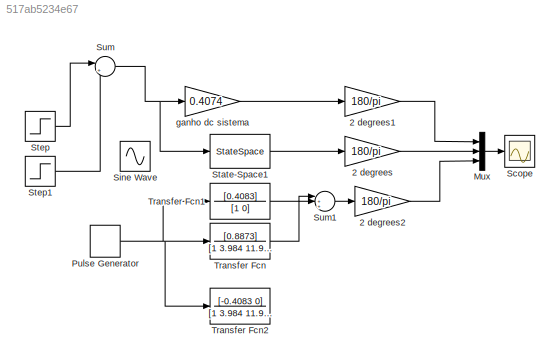
MODEL slx_517ab5234e67
KIND model
CONFIG AbsTol = 1e-3
CONFIG EnableMultiTasking = off
CONFIG FixedStep = auto
CONFIG MaxStep = 1e-3
CONFIG MinStep = auto
CONFIG RelTol = 1e-6
CONFIG SampleTimeConstraint = Unconstrained
CONFIG Solver = VariableStepAuto
CONFIG SolverName = VariableStepAuto
CONFIG StartTime = 0.0
CONFIG StopTime = 20
BLOCK [Gain] 2 degrees
  Gain = 180/pi
  OutDataTypeStr = Inherit: Inherit via internal rule
  ParamDataTypeStr = Inherit: Inherit via internal rule
  SaturateOnIntegerOverflow = off
BLOCK [Gain] 2 degrees1
  Gain = 180/pi
  OutDataTypeStr = Inherit: Inherit via internal rule
  ParamDataTypeStr = Inherit: Inherit via internal rule
  SaturateOnIntegerOverflow = off
BLOCK [Gain] 2 degrees2
  Gain = 180/pi
  OutDataTypeStr = Inherit: Inherit via internal rule
  ParamDataTypeStr = Inherit: Inherit via internal rule
  SaturateOnIntegerOverflow = off
BLOCK [Mux] Mux
  DisplayOption = bar
  Inputs = 3
  Ports = [3, 1]
BLOCK [DiscretePulseGenerator] Pulse Generator
  Amplitude = 100
  Period = 100
  PhaseDelay = 10
  Ports = [0, 1]
  PulseType = Time based
  PulseWidth = 2*10/10000
BLOCK [Scope] Scope
  NumInputPorts = 1
  Ports = [1]
  ScopeSpecificationString = Simulink.scopes.TimeScopeBlockCfg('CurrentConfiguration', extmgr.ConfigurationSet(extmgr.Configuration('Core','General UI',true),extmgr.Configuration('Core','Source UI',true),extmgr.Configuration('Sources','WiredSimulink',true),extmgr.Configuration('Visuals','Time Domain',true,'SerializedDisplays',{struct('MinYLimReal','-3.44297','MaxYLimReal','8.11891','YLabelReal','','MinYLimMag','0.00000','MaxY...<+1430ch>
BLOCK [Sin] Sine Wave
  Frequency = 1.9357
  Ports = [0, 1]
  SampleTime = 0
BLOCK [StateSpace] State-Space1
  A = ssPitch.a
  B = ssPitch.b
  C = ssPitch.c
  D = ssPitch.d
  InitialCondition = 0
  Ports = [1, 1]
BLOCK [Step] Step
  After = 0.2
  SampleTime = 0
  Time = 10
BLOCK [Step] Step1
  After = -0.2
  SampleTime = 0
  Time = 13.5
BLOCK [Sum] Sum
  IconShape = round
  InputSameDT = off
  Inputs = |++
  OutDataTypeStr = Inherit: Inherit via internal rule
  Ports = [2, 1]
  SaturateOnIntegerOverflow = off
BLOCK [Sum] Sum1
  IconShape = round
  InputSameDT = off
  Inputs = |+++
  OutDataTypeStr = Inherit: Inherit via internal rule
  Ports = [3, 1]
  SaturateOnIntegerOverflow = off
BLOCK [TransferFcn] Transfer Fcn
  Denominator = [1 3.984 11.9184]
  Numerator = [0.8873]
BLOCK [TransferFcn] Transfer Fcn1
  Denominator = [1 0]
  Numerator = [0.4083]
BLOCK [TransferFcn] Transfer Fcn2
  Denominator = [1 3.984 11.9184]
  Numerator = [-0.4083 0]
BLOCK [Gain] ganho dc sistema 
  Gain = 0.4074
  OutDataTypeStr = Inherit: Inherit via internal rule
  ParamDataTypeStr = Inherit: Inherit via internal rule
  SaturateOnIntegerOverflow = off
LINE 2 degrees1:1 -> Mux:1
LINE 2 degrees2:1 -> Mux:3
LINE 2 degrees:1 -> Mux:2
LINE Mux:1 -> Scope:1
NET Pulse Generator:1 -> Transfer Fcn1:1, Transfer Fcn2:1, Transfer Fcn:1
LINE State-Space1:1 -> 2 degrees:1
LINE Step1:1 -> Sum:2
LINE Step:1 -> Sum:1
LINE Sum1:1 -> 2 degrees2:1
NET Sum:1 -> State-Space1:1, ganho dc sistema :1
LINE Transfer Fcn1:1 -> Sum1:1
LINE Transfer Fcn:1 -> Sum1:2
LINE ganho dc sistema :1 -> 2 degrees1:1
note: NET lines group one-source signal fan-out (src -> all destinations, sorted); 1:1 wires keep LINE
